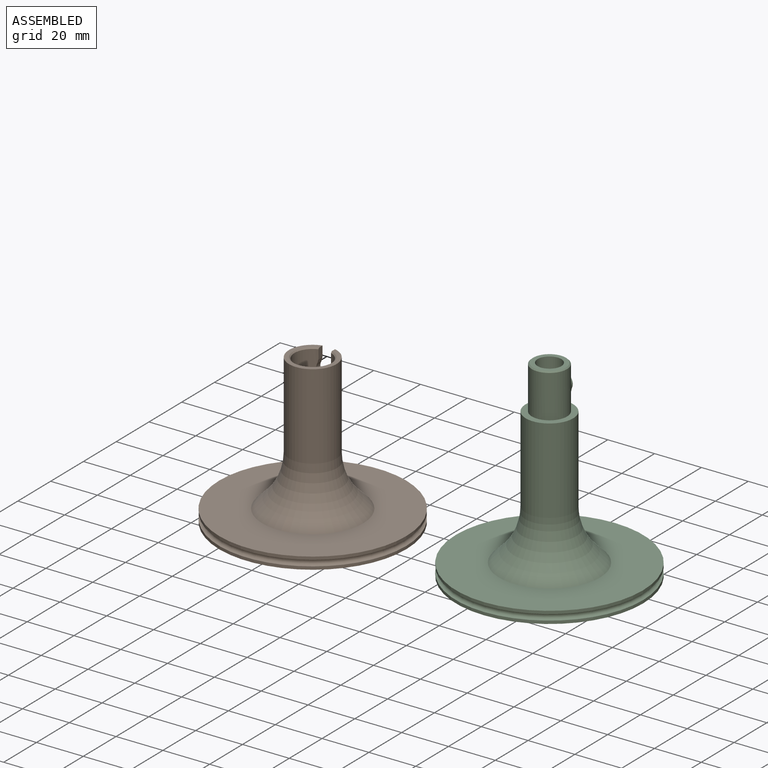
[diagram: assembled view]
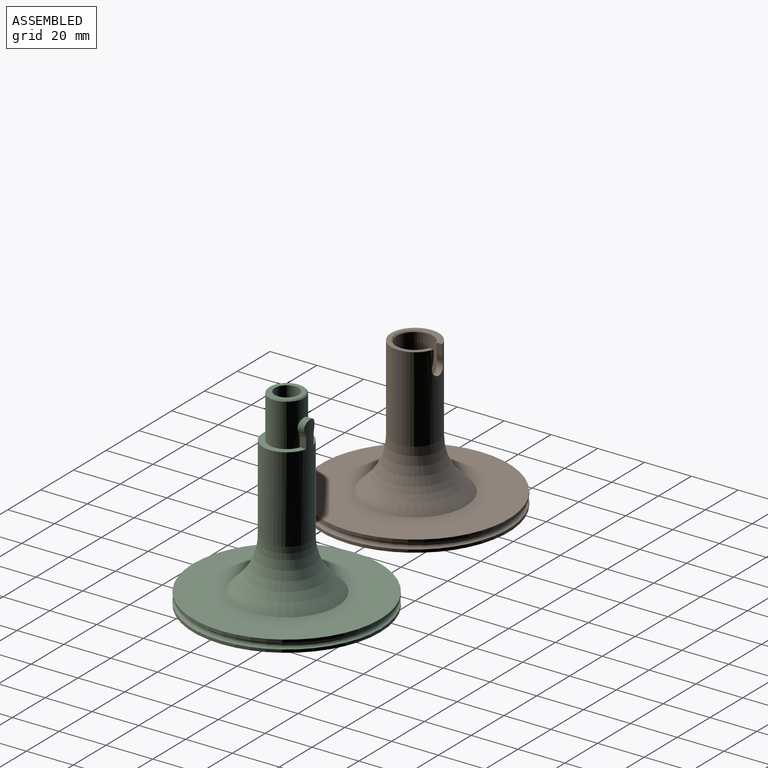
[diagram: assembled view, second angle]
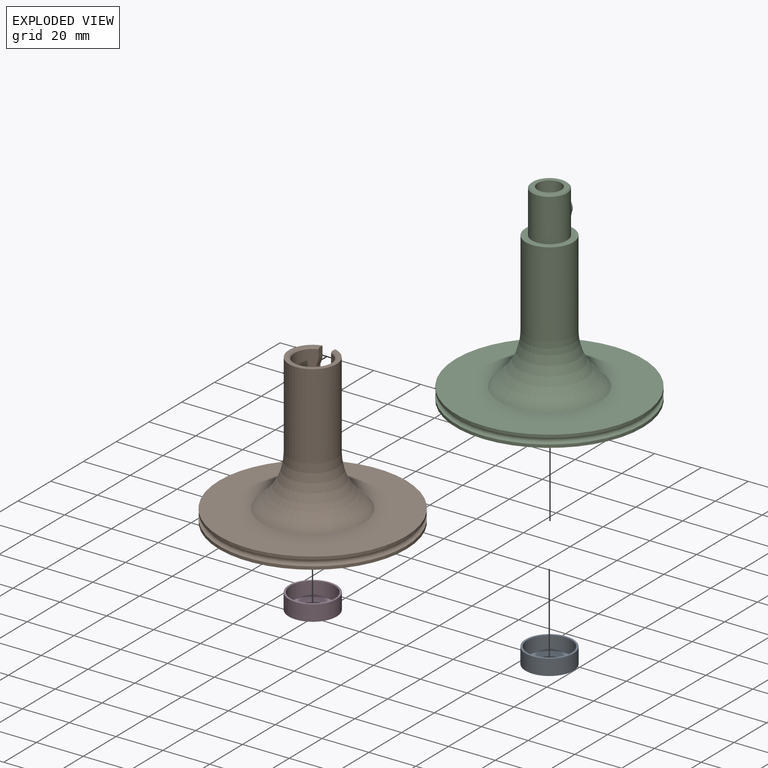
[diagram: exploded view]
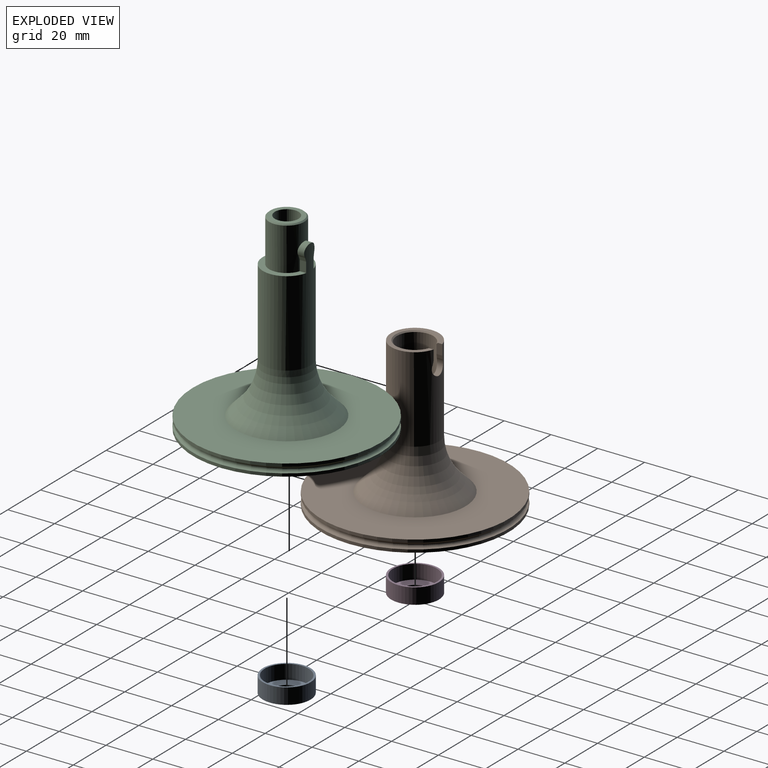
[diagram: exploded view, second angle]
ASSEMBLY  parts=4 mates=2
PART A: 6 faces, bbox 20.4x20.4x6.7 mm
  f0: cylinder r=9.4mm len=18.8mm, axis (0,0,-1), area 362mm2, adj f2,f4
  f1: cylinder r=10.2mm len=20.4mm, axis (0,0,-1), area 431.3mm2, adj f2,f3
  f2: plane 20.4x20.4mm, normal (0,0,1), area 49.3mm2, adj f0,f1
  f3: plane 20.4x20.4mm, normal (0,0,-1), area 245.6mm2, adj f1,f5
  f4: plane 18.8x18.8mm, normal (0,0,1), area 196.4mm2, adj f0,f5
  f5: cylinder r=5.08mm len=10.16mm, axis (0,0,-1), area 19.2mm2, adj f3,f4
PART B: 23 faces, bbox 88.6x88.6x63.5 mm
  f0: cylinder r=10.16mm len=36.47mm, axis (0,0,-1), area 2263.3mm2, adj f1,f2,f17,f18,f20,f22
  f1: cylinder r=10.16mm len=6.07mm, axis (0,0,-1), area 2.1mm2, adj f0,f2,f19,f21
  f2: plane 20.32x19.96mm, normal (0,0,1), area 98.4mm2, adj f0,f1,f4,f18,f19
  f3: cylinder r=7.78mm len=18.54mm, axis (0,0,1), area 845.7mm2, adj f4,f16,f17,f18,f19,f20,f21
  f4: cone r=7.78mm half-angle=45deg, axis (0,0,1), area 32.4mm2, adj f2,f3,f18,f19
  f5: cylinder r=5.08mm len=32.77mm, axis (0,0,-1), area 1045.8mm2, adj f15,f16
  f6: cylinder r=40mm len=80mm, axis (0,0,-1), area 319.2mm2, adj f9,f10
  f7: cylinder r=40mm len=80mm, axis (0,0,-1), area 319.2mm2, adj f8,f10
  f8: plane 80x80mm, normal (0,0,1), area 3562.2mm2, adj f7,f11
  f9: plane 80x80mm, normal (0,0,-1), area 4576mm2, adj f6,f14
  f10: torus R=40mm, axis (0,0,-1), area 982.5mm2, adj f6,f7
  f11: cone r=8.89mm half-angle=45deg, axis (0,0,-1), area 694.8mm2, adj f8,f22
  f12: cylinder r=11.21mm len=22.43mm, axis (0,0,-1), area 429.5mm2, adj f13,f14
  f13: plane 22.43x22.43mm, normal (0,0,-1), area 117.6mm2, adj f12,f15
  f14: cone r=11.21mm half-angle=45deg, axis (0,0,-1), area 78.5mm2, adj f9,f12
  f15: cone r=5.08mm half-angle=41.8deg, axis (0,0,-1), area 294.5mm2, adj f5,f13
  f16: plane 15.56x15.56mm, normal (0,0,1), area 109mm2, adj f3,f5
  f17: cylinder r=3.43mm len=6.86mm, axis (0,-1,0), area 35.2mm2, adj f0,f3,f20,f21
  f18: plane 4.44x2.5mm, normal (-1,0,0), area 10.9mm2, adj f0,f2,f3,f4,f20
  f19: plane 4.44x2.5mm, normal (1,0,0), area 10.9mm2, adj f1,f2,f3,f4,f21
  f20: plane 2.66x1.64mm, normal (-0.97,0,-0.23), area 4.2mm2, adj f0,f3,f17,f18
  f21: plane 2.66x1.64mm, normal (0.97,0,-0.23), area 4.2mm2, adj f1,f3,f17,f19
  f22: torus R=35.56mm, axis (0,0,1), area 1590.9mm2, adj f0,f11
PART C: 24 faces, bbox 88.6x88.6x82.3 mm
  f0: cylinder r=5.08mm len=70.61mm, axis (0,0,1), area 2253.8mm2, adj f15,f16
  f1: cylinder r=7.52mm len=18.29mm, axis (0,0,1), area 807.2mm2, adj f2,f10,f17,f18,f20,f21
  f2: cylinder r=7.52mm len=6mm, axis (0,0,1), area 2.4mm2, adj f1,f10,f19,f22
  f3: cylinder r=40mm len=80mm, axis (0,0,1), area 319.2mm2, adj f6,f7
  f4: cylinder r=40mm len=80mm, axis (0,0,1), area 319.2mm2, adj f5,f7
  f5: plane 80x80mm, normal (0,0,-1), area 3562.2mm2, adj f4,f11
  f6: plane 80x80mm, normal (0,0,1), area 4576mm2, adj f3,f14
  f7: torus R=40mm, axis (0,0,1), area 982.5mm2, adj f3,f4
  f8: cylinder r=10.16mm len=47.26mm, axis (0,0,1), area 2381.5mm2, adj f9,f10,f17,f18,f19,f21,f22,f23
  f9: cylinder r=10.16mm len=3.25mm, axis (0,0,1), area 1mm2, adj f8,f17
  f10: plane 20.32x20.06mm, normal (0,0,-1), area 134.2mm2, adj f1,f2,f8,f18,f19
  f11: cone r=8.89mm half-angle=45deg, axis (0,0,1), area 694.8mm2, adj f5,f23
  f12: cylinder r=11.21mm len=22.43mm, axis (0,0,1), area 429.5mm2, adj f13,f14
  f13: plane 22.43x22.43mm, normal (0,0,1), area 117.6mm2, adj f12,f15
  f14: cone r=11.21mm half-angle=45deg, axis (0,0,1), area 78.5mm2, adj f6,f12
  f15: cone r=5.08mm half-angle=41.8deg, axis (0,0,1), area 294.5mm2, adj f0,f13
  f16: plane 14.03x14.03mm, normal (0,0,-1), area 73.6mm2, adj f0,f20
  f17: cylinder r=3.17mm len=6.35mm, axis (0,1,0), area 36.8mm2, adj f1,f8,f9,f21,f22
  f18: plane 4.39x2.73mm, normal (-1,0,0), area 12mm2, adj f1,f8,f10,f21
  f19: plane 4.39x2.73mm, normal (1,0,0), area 12mm2, adj f2,f8,f10,f22
  f20: cone r=7.02mm half-angle=45deg, axis (0,0,1), area 32.8mm2, adj f1,f16
  f21: plane 2.9x1.62mm, normal (-0.96,0,0.27), area 4.6mm2, adj f1,f8,f17,f18
  f22: plane 2.9x1.62mm, normal (0.96,0,0.27), area 4.6mm2, adj f2,f8,f17,f19
  f23: torus R=35.56mm, axis (0,0,1), area 1590.9mm2, adj f8,f11
PART D: same geometry as A
PLACE A t=(93.63,10.74,0)mm
PLACE B at identity fixed
PLACE C rot(axis=(1,0,0),180deg) t=(93.63,10.74,137.16)mm fixed
PLACE D at identity
MATE fastened A.f1 <-> C.f3  axis (0,0,-1) through (93.63,10.74,0)mm
MATE fastened D.f1 <-> B.f6  axis (0,0,-1) through (0,0,0)mm
